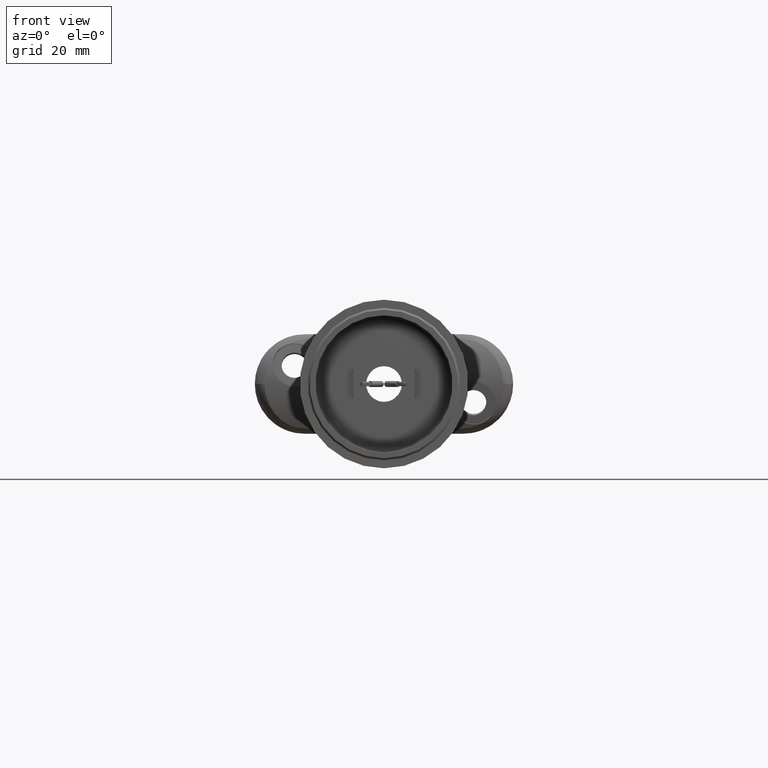
[diagram: clean part render]
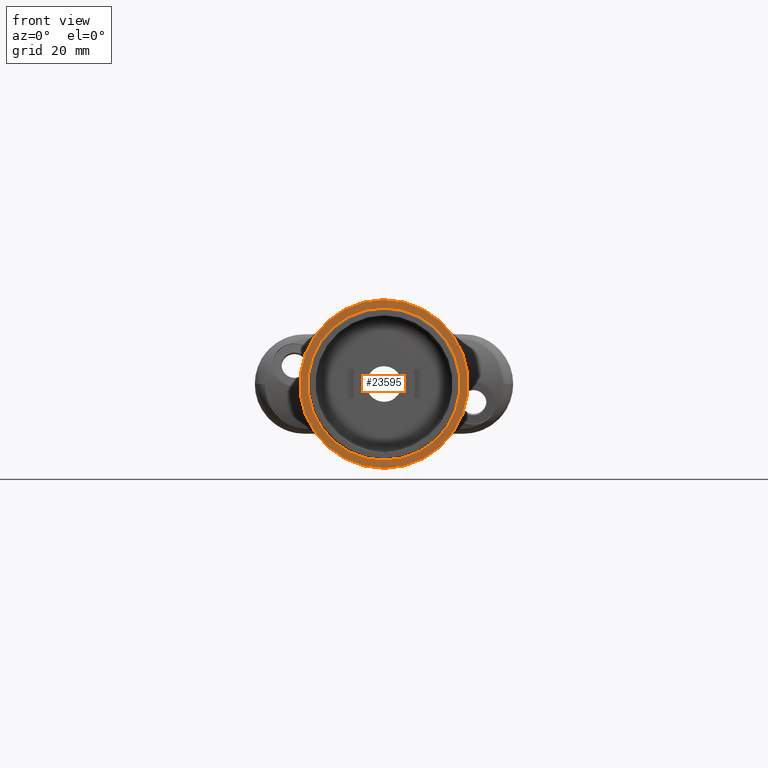
[diagram: same view with one face highlighted and labeled with its STEP entity id]
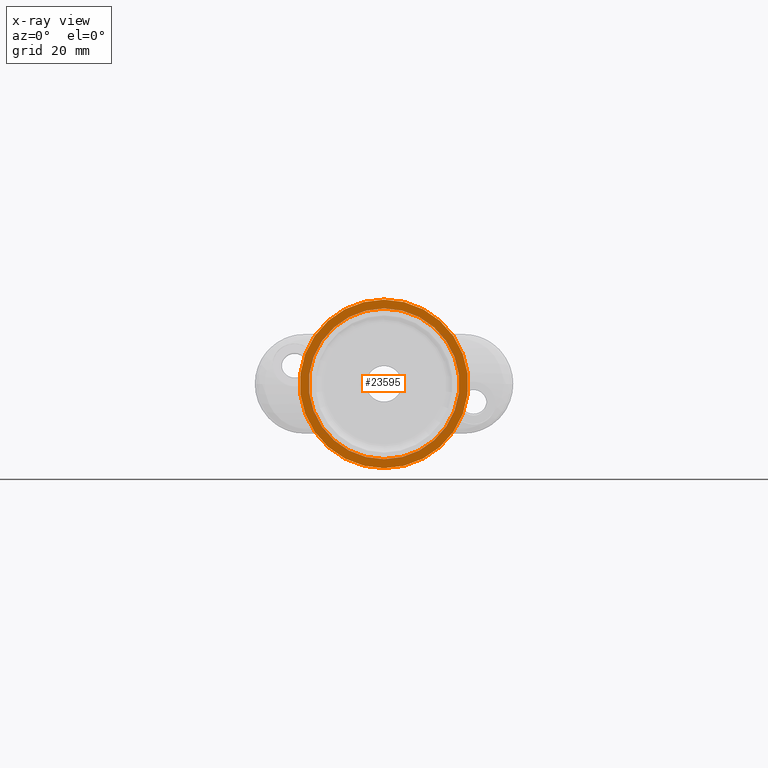
[diagram: x-ray of the same camera — body ghosted, the highlighted face saturated]
A machine part, front view. The second image highlights one B-rep face of the part: STEP entity #23595.
The next image is the same camera in x-ray: the body ghosted, the highlighted face saturated — about 8% of this face is hidden behind the body in this view.
In plain terms, the highlighted planar face has unit normal (0, -1, 0).
Its self-contained STEP definition (entity closure, byte-faithful):
#3296 = DIRECTION ( 'NONE',  ( 0.0000000000000000000, 0.0000000000000000000, -1.000000000000000000 ) ) ;
#5356 = AXIS2_PLACEMENT_3D ( 'NONE', #12481, #33274, #29369 ) ;
#7733 = ORIENTED_EDGE ( 'NONE', *, *, #52685, .T. ) ;
#9715 = FACE_BOUND ( 'NONE', #37478, .T. ) ;
#12213 = AXIS2_PLACEMENT_3D ( 'NONE', #22521, #35052, #39470 ) ;
#12481 = CARTESIAN_POINT ( 'NONE',  ( 0.0000000000000000000, -3.367778697655220000E-016, 0.0000000000000000000 ) ) ;
#12701 = EDGE_LOOP ( 'NONE', ( #7733 ) ) ;
#15790 = DIRECTION ( 'NONE',  ( 0.0000000000000000000, -1.000000000000000000, -0.0000000000000000000 ) ) ;
#21237 = AXIS2_PLACEMENT_3D ( 'NONE', #53687, #15790, #3296 ) ;
#22389 = EDGE_CURVE ( 'NONE', #32877, #32877, #44022, .T. ) ;
#22521 = CARTESIAN_POINT ( 'NONE',  ( 0.0000000000000000000, 0.0000000000000000000, 0.0000000000000000000 ) ) ;
#23595 = ADVANCED_FACE ( 'NONE', ( #38027, #9715 ), #36776, .T. ) ;
#25097 = CIRCLE ( 'NONE', #12213, 21.19999999999999900 ) ;
#29369 = DIRECTION ( 'NONE',  ( 0.0000000000000000000, 0.0000000000000000000, -1.000000000000000000 ) ) ;
#32138 = CARTESIAN_POINT ( 'NONE',  ( 0.0000000000000000000, -3.367778697655220000E-016, -18.94999999999999900 ) ) ;
#32877 = VERTEX_POINT ( 'NONE', #32138 ) ;
#33274 = DIRECTION ( 'NONE',  ( -0.0000000000000000000, -1.000000000000000000, -0.0000000000000000000 ) ) ;
#35052 = DIRECTION ( 'NONE',  ( -0.0000000000000000000, -1.000000000000000000, -0.0000000000000000000 ) ) ;
#36157 = ORIENTED_EDGE ( 'NONE', *, *, #22389, .F. ) ;
#36776 = PLANE ( 'NONE',  #21237 ) ;
#37478 = EDGE_LOOP ( 'NONE', ( #36157 ) ) ;
#38027 = FACE_OUTER_BOUND ( 'NONE', #12701, .T. ) ;
#39470 = DIRECTION ( 'NONE',  ( 0.0000000000000000000, 0.0000000000000000000, -1.000000000000000000 ) ) ;
#44022 = CIRCLE ( 'NONE', #5356, 18.94999999999999900 ) ;
#45120 = CARTESIAN_POINT ( 'NONE',  ( 0.0000000000000000000, 0.0000000000000000000, -21.19999999999999900 ) ) ;
#46418 = VERTEX_POINT ( 'NONE', #45120 ) ;
#52685 = EDGE_CURVE ( 'NONE', #46418, #46418, #25097, .T. ) ;
#53687 = CARTESIAN_POINT ( 'NONE',  ( 21.19999999999999900, -1.683889348827610000E-016, 0.0000000000000000000 ) ) ;